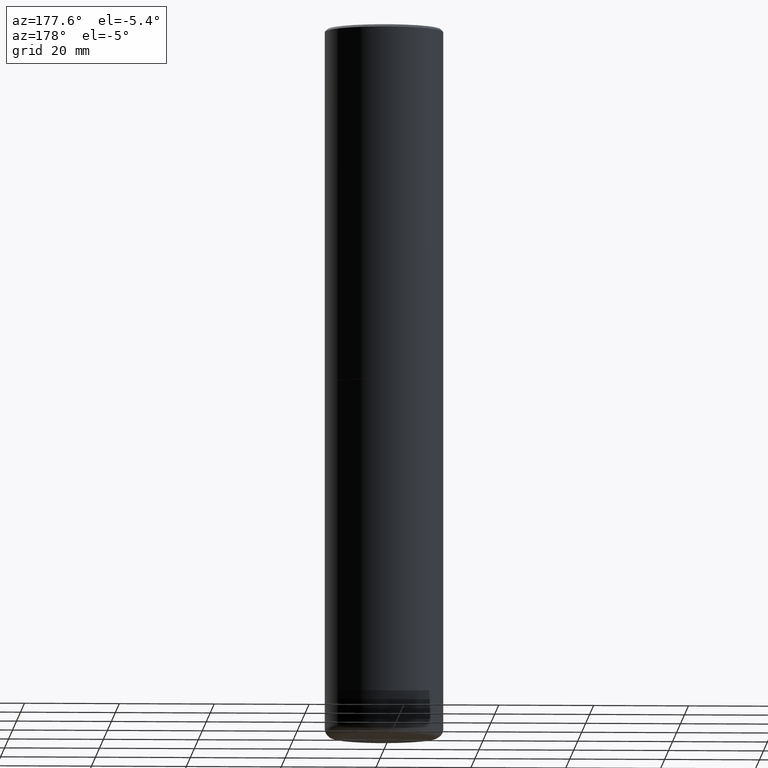
[diagram: clean part render]
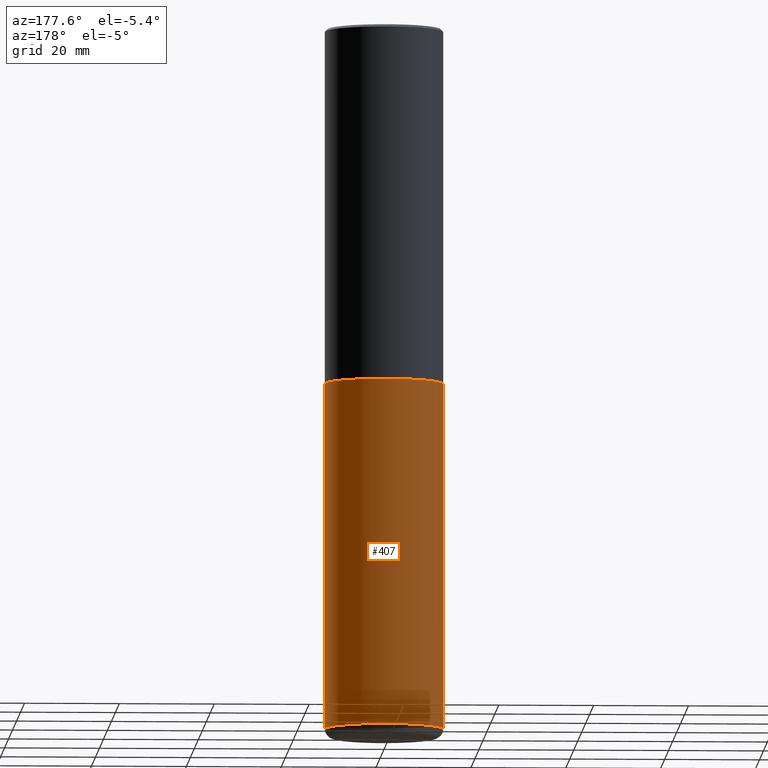
[diagram: same view with one face highlighted and labeled with its STEP entity id]
A machine part, auxiliary view. The second image highlights one B-rep face of the part: STEP entity #407.
In plain terms, the highlighted cylindrical surface (partial cylindrical patch) has radius 12.5006 mm, axis along (-0, 0, 1).
Its self-contained STEP definition (entity closure, byte-faithful):
#16 = CIRCLE ( 'NONE', #411, 0.4921499999999999209 ) ;
#32 = CARTESIAN_POINT ( 'NONE',  ( -0.4921499999999999764, -1.684722739112790494E-14, -5.826799999999999535 ) ) ;
#37 = ORIENTED_EDGE ( 'NONE', *, *, #394, .T. ) ;
#42 = VERTEX_POINT ( 'NONE', #193 ) ;
#45 = VERTEX_POINT ( 'NONE', #144 ) ;
#65 = LINE ( 'NONE', #179, #385 ) ;
#74 = DIRECTION ( 'NONE',  ( -2.445468806185136877E-29, 3.491481338843145188E-15, 1.000000000000000000 ) ) ;
#97 = EDGE_CURVE ( 'NONE', #351, #205, #147, .T. ) ;
#103 = CYLINDRICAL_SURFACE ( 'NONE', #209, 0.4921499999999999764 ) ;
#109 = FACE_OUTER_BOUND ( 'NONE', #139, .T. ) ;
#121 = CARTESIAN_POINT ( 'NONE',  ( -0.4921499999999999764, -1.182979413314336550E-14, -2.952700000000000102 ) ) ;
#133 = DIRECTION ( 'NONE',  ( -2.445468806185136597E-29, 3.491481338843145583E-15, 1.000000000000000000 ) ) ;
#139 = EDGE_LOOP ( 'NONE', ( #37, #389, #321, #292 ) ) ;
#144 = CARTESIAN_POINT ( 'NONE',  ( 0.4921499999999999764, -2.378082854699453914E-14, -5.826799999999999535 ) ) ;
#146 = AXIS2_PLACEMENT_3D ( 'NONE', #386, #383, #310 ) ;
#147 = LINE ( 'NONE', #275, #325 ) ;
#156 = EDGE_CURVE ( 'NONE', #42, #205, #220, .T. ) ;
#179 = CARTESIAN_POINT ( 'NONE',  ( 0.4921499999999999764, -3.436665081823295777E-15, 2.399810400207969603E-29 ) ) ;
#193 = CARTESIAN_POINT ( 'NONE',  ( 0.4921499999999999764, -1.374596203102545079E-14, -2.952700000000000102 ) ) ;
#205 = VERTEX_POINT ( 'NONE', #121 ) ;
#209 = AXIS2_PLACEMENT_3D ( 'NONE', #226, #133, #391 ) ;
#220 = CIRCLE ( 'NONE', #146, 0.4921499999999999764 ) ;
#226 = CARTESIAN_POINT ( 'NONE',  ( 0.000000000000000000, 0.000000000000000000, 0.000000000000000000 ) ) ;
#266 = DIRECTION ( 'NONE',  ( 1.000000000000000000, -6.982962677686266711E-15, 0.000000000000000000 ) ) ;
#275 = CARTESIAN_POINT ( 'NONE',  ( -0.4921499999999999764, 3.496936074043332897E-15, -2.420853904668951509E-29 ) ) ;
#276 = EDGE_CURVE ( 'NONE', #45, #42, #65, .T. ) ;
#292 = ORIENTED_EDGE ( 'NONE', *, *, #276, .F. ) ;
#293 = CARTESIAN_POINT ( 'NONE',  ( 1.424925763987955342E-28, -2.034416346517123863E-14, -5.826799999999999535 ) ) ;
#310 = DIRECTION ( 'NONE',  ( 1.000000000000000000, -6.982962677686265922E-15, 0.000000000000000000 ) ) ;
#321 = ORIENTED_EDGE ( 'NONE', *, *, #156, .F. ) ;
#325 = VECTOR ( 'NONE', #74, 39.37007874015748143 ) ;
#351 = VERTEX_POINT ( 'NONE', #32 ) ;
#382 = DIRECTION ( 'NONE',  ( -2.445468806185136877E-29, 3.491481338843145188E-15, 1.000000000000000000 ) ) ;
#383 = DIRECTION ( 'NONE',  ( -2.445468806185136597E-29, 3.491481338843145583E-15, 1.000000000000000000 ) ) ;
#385 = VECTOR ( 'NONE', #382, 39.37007874015748143 ) ;
#386 = CARTESIAN_POINT ( 'NONE',  ( 7.220735744022852519E-29, -1.030929694920215502E-14, -2.952700000000000102 ) ) ;
#388 = DIRECTION ( 'NONE',  ( -2.445468806185136597E-29, 3.491481338843145583E-15, 1.000000000000000000 ) ) ;
#389 = ORIENTED_EDGE ( 'NONE', *, *, #97, .T. ) ;
#391 = DIRECTION ( 'NONE',  ( 1.000000000000000000, -6.982962677686265922E-15, 4.876176775795935793E-29 ) ) ;
#394 = EDGE_CURVE ( 'NONE', #45, #351, #16, .T. ) ;
#407 = ADVANCED_FACE ( 'NONE', ( #109 ), #103, .T. ) ;
#411 = AXIS2_PLACEMENT_3D ( 'NONE', #293, #388, #266 ) ;